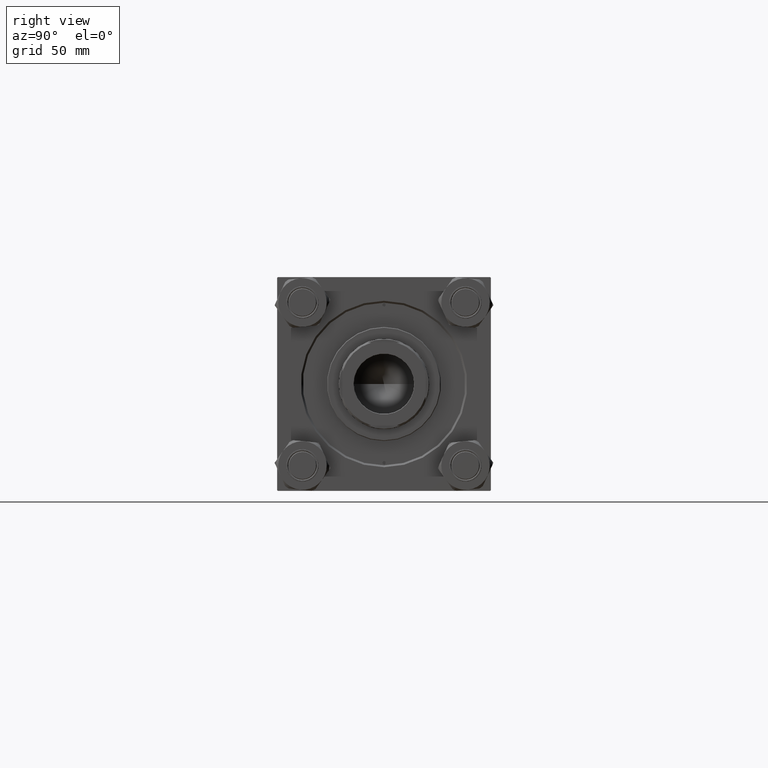
[diagram: clean part render]
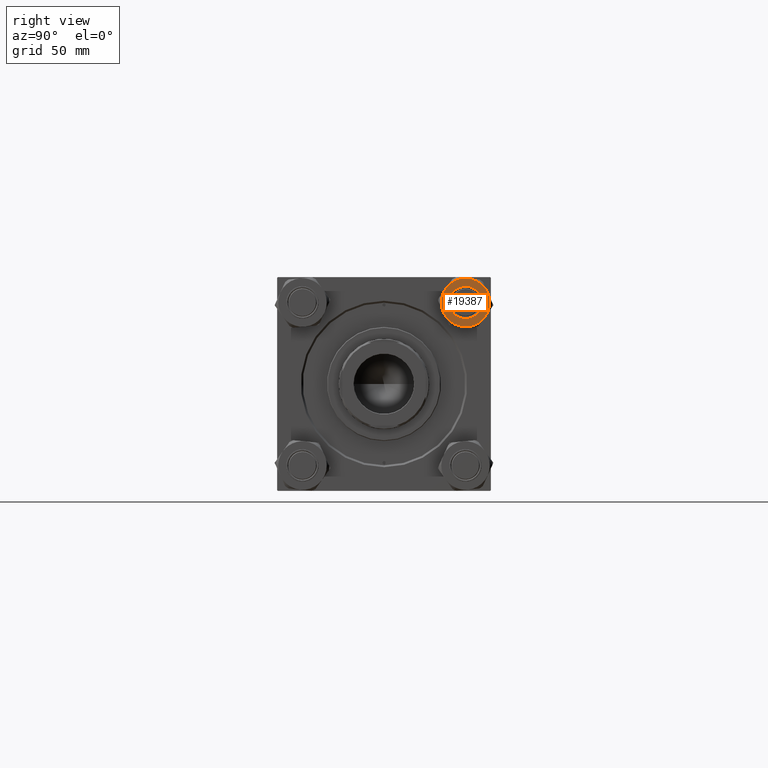
[diagram: same view with one face highlighted and labeled with its STEP entity id]
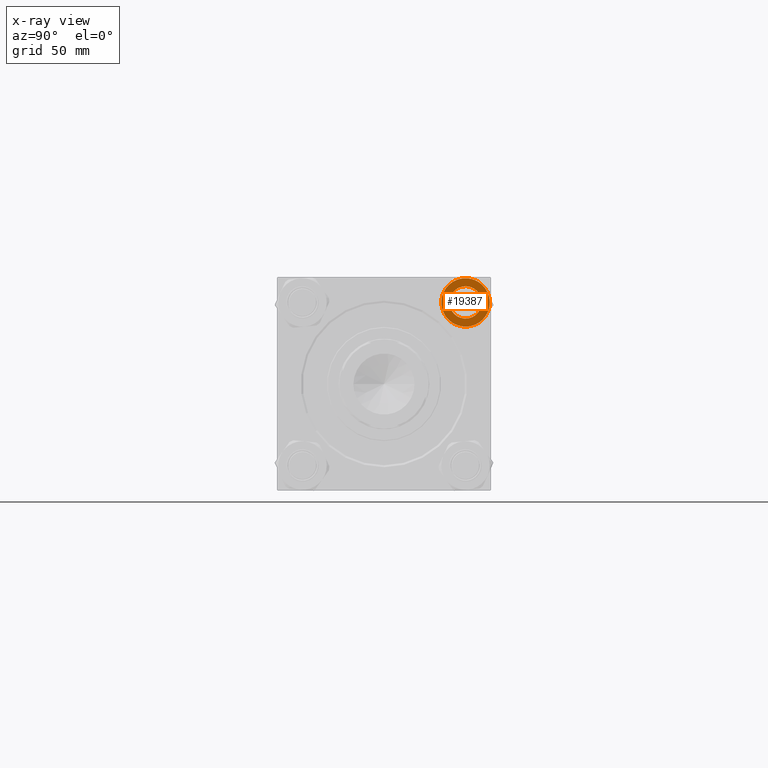
[diagram: x-ray of the same camera — body ghosted, the highlighted face saturated]
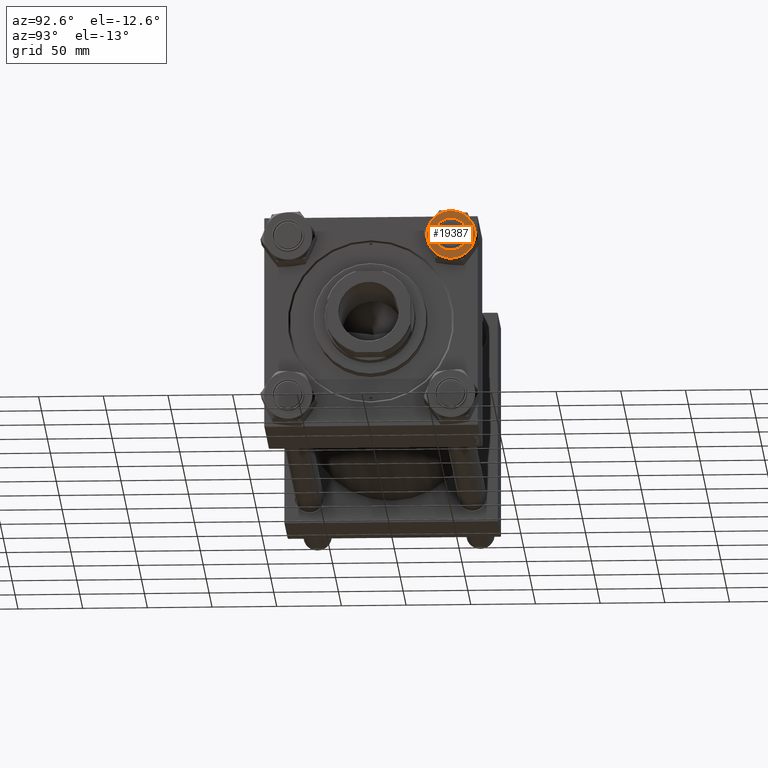
[diagram: same view with one face highlighted and labeled with its STEP entity id]
A machine part, right view. The second image highlights one B-rep face of the part: STEP entity #19387.
The next image is the same camera in x-ray: the body ghosted, the highlighted face saturated — about 0% of this face is hidden behind the body in this view.
A second angle (auxiliary view) of the same face is appended — the face is thin or edge-on in the first view.
In plain terms, the highlighted planar face has unit normal (-1, 0, -0).
Its self-contained STEP definition (entity closure, byte-faithful):
#380 = DIRECTION ( 'NONE',  ( -1.000000000000000000, 0.000000000000000000, 0.000000000000000000 ) ) ;
#570 = DIRECTION ( 'NONE',  ( 0.000000000000000000, -0.000000000000000000, -1.000000000000000000 ) ) ;
#1506 = AXIS2_PLACEMENT_3D ( 'NONE', #25941, #44558, #6543 ) ;
#3389 = CARTESIAN_POINT ( 'NONE',  ( 1.802777518484590916E-14, -18.72346922981956041, 0.000000000000000000 ) ) ;
#3550 = VERTEX_POINT ( 'NONE', #17985 ) ;
#4332 = CIRCLE ( 'NONE', #27995, 18.72346922981956041 ) ;
#4608 = EDGE_LOOP ( 'NONE', ( #46343, #12127 ) ) ;
#4738 = AXIS2_PLACEMENT_3D ( 'NONE', #29135, #29897, #45456 ) ;
#4805 = CARTESIAN_POINT ( 'NONE',  ( -1.502314598737160570E-14, 18.72346922981957817, 0.000000000000000000 ) ) ;
#5380 = CARTESIAN_POINT ( 'NONE',  ( 0.000000000000000000, 0.000000000000000000, 0.000000000000000000 ) ) ;
#6044 = ORIENTED_EDGE ( 'NONE', *, *, #28737, .F. ) ;
#6129 = DIRECTION ( 'NONE',  ( 0.000000000000000000, 0.000000000000000000, -1.000000000000000000 ) ) ;
#6478 = AXIS2_PLACEMENT_3D ( 'NONE', #21579, #9087, #40702 ) ;
#6543 = DIRECTION ( 'NONE',  ( -1.000000000000000000, 0.000000000000000000, 0.000000000000000000 ) ) ;
#6966 = ORIENTED_EDGE ( 'NONE', *, *, #43344, .F. ) ;
#9087 = DIRECTION ( 'NONE',  ( 0.000000000000000000, 0.000000000000000000, 1.000000000000000000 ) ) ;
#9410 = DIRECTION ( 'NONE',  ( 1.000000000000000000, 0.000000000000000000, 0.000000000000000000 ) ) ;
#9495 = EDGE_CURVE ( 'NONE', #33800, #45178, #44787, .T. ) ;
#10010 = VERTEX_POINT ( 'NONE', #16809 ) ;
#10127 = DIRECTION ( 'NONE',  ( -1.000000000000000000, 0.000000000000000000, 0.000000000000000000 ) ) ;
#11481 = CARTESIAN_POINT ( 'NONE',  ( -12.50000000000000000, 0.000000000000000000, 0.000000000000000000 ) ) ;
#12127 = ORIENTED_EDGE ( 'NONE', *, *, #9495, .F. ) ;
#12375 = DIRECTION ( 'NONE',  ( 0.000000000000000000, -0.000000000000000000, -1.000000000000000000 ) ) ;
#12611 = CIRCLE ( 'NONE', #39472, 18.72346922981956041 ) ;
#12695 = ORIENTED_EDGE ( 'NONE', *, *, #47130, .F. ) ;
#12872 = AXIS2_PLACEMENT_3D ( 'NONE', #21560, #41188, #37121 ) ;
#12992 = CARTESIAN_POINT ( 'NONE',  ( -16.21499999999999275, -9.361734614909785535, 0.000000000000000000 ) ) ;
#13972 = CARTESIAN_POINT ( 'NONE',  ( 12.50000000000000000, 1.530808498934191521E-15, 0.000000000000000000 ) ) ;
#15268 = VERTEX_POINT ( 'NONE', #30776 ) ;
#15856 = CARTESIAN_POINT ( 'NONE',  ( 0.000000000000000000, 0.000000000000000000, 0.000000000000000000 ) ) ;
#16809 = CARTESIAN_POINT ( 'NONE',  ( -16.21499999999999986, 9.361734614909769547, 0.000000000000000000 ) ) ;
#17985 = CARTESIAN_POINT ( 'NONE',  ( 18.72346922981956041, 0.000000000000000000, 0.000000000000000000 ) ) ;
#18778 = AXIS2_PLACEMENT_3D ( 'NONE', #15856, #35263, #46480 ) ;
#19387 = ADVANCED_FACE ( 'NONE', ( #25547, #40334 ), #25283, .F. ) ;
#19715 = DIRECTION ( 'NONE',  ( -1.000000000000000000, 0.000000000000000000, 0.000000000000000000 ) ) ;
#20652 = AXIS2_PLACEMENT_3D ( 'NONE', #5380, #6129, #44662 ) ;
#20686 = EDGE_CURVE ( 'NONE', #45178, #33800, #41751, .T. ) ;
#20723 = VERTEX_POINT ( 'NONE', #12992 ) ;
#21560 = CARTESIAN_POINT ( 'NONE',  ( 0.000000000000000000, 0.000000000000000000, 0.000000000000000000 ) ) ;
#21579 = CARTESIAN_POINT ( 'NONE',  ( 0.000000000000000000, 0.000000000000000000, 0.000000000000000000 ) ) ;
#23048 = AXIS2_PLACEMENT_3D ( 'NONE', #44365, #25230, #9410 ) ;
#23503 = CIRCLE ( 'NONE', #1506, 18.72346922981956041 ) ;
#23835 = EDGE_CURVE ( 'NONE', #15268, #24565, #43021, .T. ) ;
#24565 = VERTEX_POINT ( 'NONE', #4805 ) ;
#25230 = DIRECTION ( 'NONE',  ( 0.000000000000000000, 0.000000000000000000, 1.000000000000000000 ) ) ;
#25283 = PLANE ( 'NONE',  #20652 ) ;
#25441 = ORIENTED_EDGE ( 'NONE', *, *, #28046, .F. ) ;
#25547 = FACE_BOUND ( 'NONE', #4608, .T. ) ;
#25941 = CARTESIAN_POINT ( 'NONE',  ( 0.000000000000000000, 0.000000000000000000, 0.000000000000000000 ) ) ;
#27428 = CARTESIAN_POINT ( 'NONE',  ( 0.000000000000000000, 0.000000000000000000, 0.000000000000000000 ) ) ;
#27784 = EDGE_CURVE ( 'NONE', #15268, #3550, #35722, .T. ) ;
#27995 = AXIS2_PLACEMENT_3D ( 'NONE', #27428, #12375, #380 ) ;
#28046 = EDGE_CURVE ( 'NONE', #3550, #31997, #34911, .T. ) ;
#28737 = EDGE_CURVE ( 'NONE', #31997, #45960, #23503, .T. ) ;
#29135 = CARTESIAN_POINT ( 'NONE',  ( 0.000000000000000000, 0.000000000000000000, 0.000000000000000000 ) ) ;
#29532 = CARTESIAN_POINT ( 'NONE',  ( 0.000000000000000000, 0.000000000000000000, 0.000000000000000000 ) ) ;
#29897 = DIRECTION ( 'NONE',  ( 0.000000000000000000, -0.000000000000000000, -1.000000000000000000 ) ) ;
#30304 = ORIENTED_EDGE ( 'NONE', *, *, #27784, .F. ) ;
#30776 = CARTESIAN_POINT ( 'NONE',  ( 16.21499999999998920, 9.361734614909789087, 0.000000000000000000 ) ) ;
#31997 = VERTEX_POINT ( 'NONE', #32490 ) ;
#32490 = CARTESIAN_POINT ( 'NONE',  ( 16.21500000000000341, -9.361734614909767771, 0.000000000000000000 ) ) ;
#33283 = EDGE_CURVE ( 'NONE', #20723, #10010, #40745, .T. ) ;
#33464 = ORIENTED_EDGE ( 'NONE', *, *, #23835, .T. ) ;
#33800 = VERTEX_POINT ( 'NONE', #13972 ) ;
#34911 = CIRCLE ( 'NONE', #4738, 18.72346922981956041 ) ;
#35263 = DIRECTION ( 'NONE',  ( 0.000000000000000000, -0.000000000000000000, -1.000000000000000000 ) ) ;
#35542 = CARTESIAN_POINT ( 'NONE',  ( 0.000000000000000000, 0.000000000000000000, 0.000000000000000000 ) ) ;
#35722 = CIRCLE ( 'NONE', #37347, 18.72346922981956041 ) ;
#37121 = DIRECTION ( 'NONE',  ( 1.000000000000000000, 0.000000000000000000, 0.000000000000000000 ) ) ;
#37347 = AXIS2_PLACEMENT_3D ( 'NONE', #35542, #570, #19715 ) ;
#39472 = AXIS2_PLACEMENT_3D ( 'NONE', #29532, #45089, #10127 ) ;
#39563 = EDGE_LOOP ( 'NONE', ( #6966, #40830, #12695, #6044, #25441, #30304, #33464 ) ) ;
#40334 = FACE_OUTER_BOUND ( 'NONE', #39563, .T. ) ;
#40702 = DIRECTION ( 'NONE',  ( 1.000000000000000000, 0.000000000000000000, 0.000000000000000000 ) ) ;
#40745 = CIRCLE ( 'NONE', #18778, 18.72346922981956041 ) ;
#40830 = ORIENTED_EDGE ( 'NONE', *, *, #33283, .F. ) ;
#41188 = DIRECTION ( 'NONE',  ( 0.000000000000000000, 0.000000000000000000, 1.000000000000000000 ) ) ;
#41751 = CIRCLE ( 'NONE', #23048, 12.50000000000000000 ) ;
#43021 = CIRCLE ( 'NONE', #12872, 18.72346922981956041 ) ;
#43344 = EDGE_CURVE ( 'NONE', #10010, #24565, #4332, .T. ) ;
#44365 = CARTESIAN_POINT ( 'NONE',  ( 0.000000000000000000, 0.000000000000000000, 0.000000000000000000 ) ) ;
#44558 = DIRECTION ( 'NONE',  ( 0.000000000000000000, -0.000000000000000000, -1.000000000000000000 ) ) ;
#44662 = DIRECTION ( 'NONE',  ( -1.000000000000000000, 0.000000000000000000, -0.000000000000000000 ) ) ;
#44787 = CIRCLE ( 'NONE', #6478, 12.50000000000000000 ) ;
#45089 = DIRECTION ( 'NONE',  ( 0.000000000000000000, -0.000000000000000000, -1.000000000000000000 ) ) ;
#45178 = VERTEX_POINT ( 'NONE', #11481 ) ;
#45456 = DIRECTION ( 'NONE',  ( -1.000000000000000000, 0.000000000000000000, 0.000000000000000000 ) ) ;
#45960 = VERTEX_POINT ( 'NONE', #3389 ) ;
#46343 = ORIENTED_EDGE ( 'NONE', *, *, #20686, .F. ) ;
#46480 = DIRECTION ( 'NONE',  ( -1.000000000000000000, 0.000000000000000000, 0.000000000000000000 ) ) ;
#47130 = EDGE_CURVE ( 'NONE', #45960, #20723, #12611, .T. ) ;